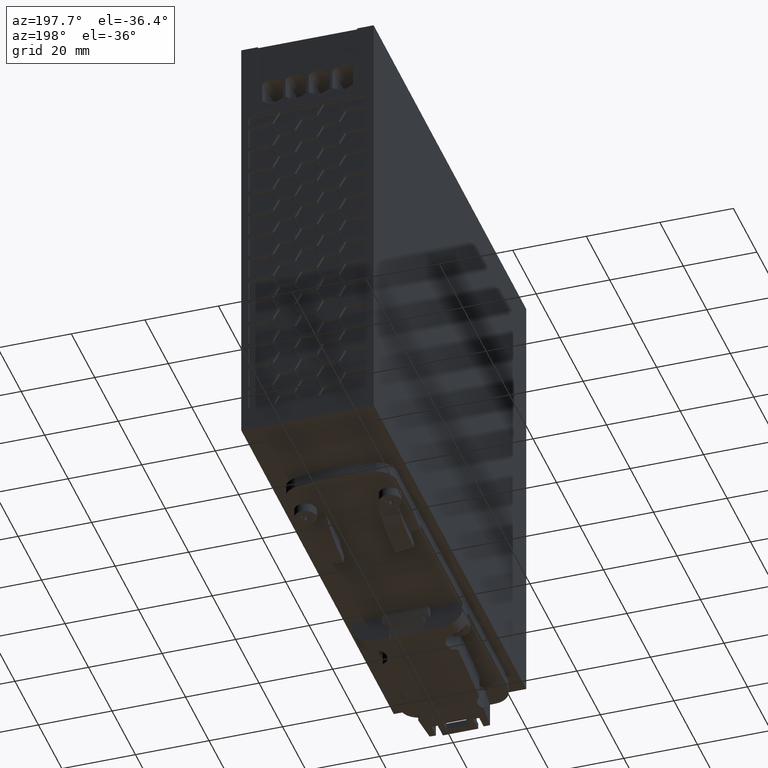
[diagram: clean part render]
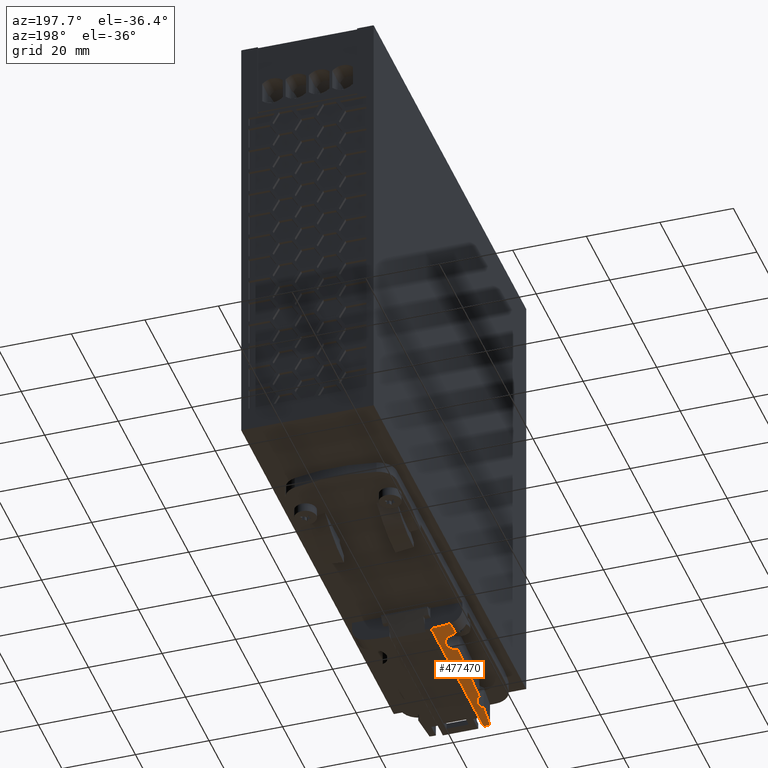
[diagram: same view with one face highlighted and labeled with its STEP entity id]
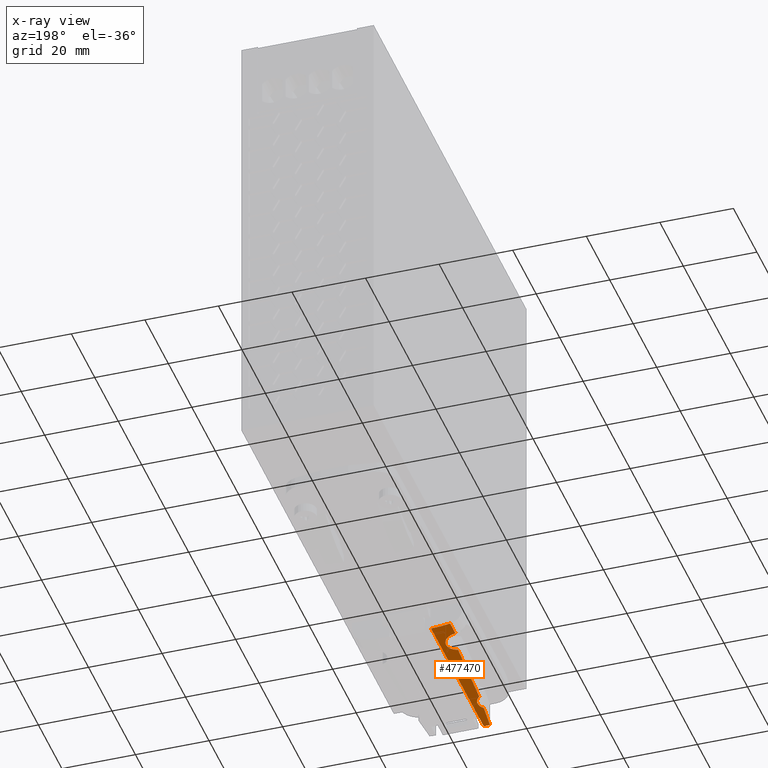
[diagram: x-ray of the same camera — body ghosted, the highlighted face saturated]
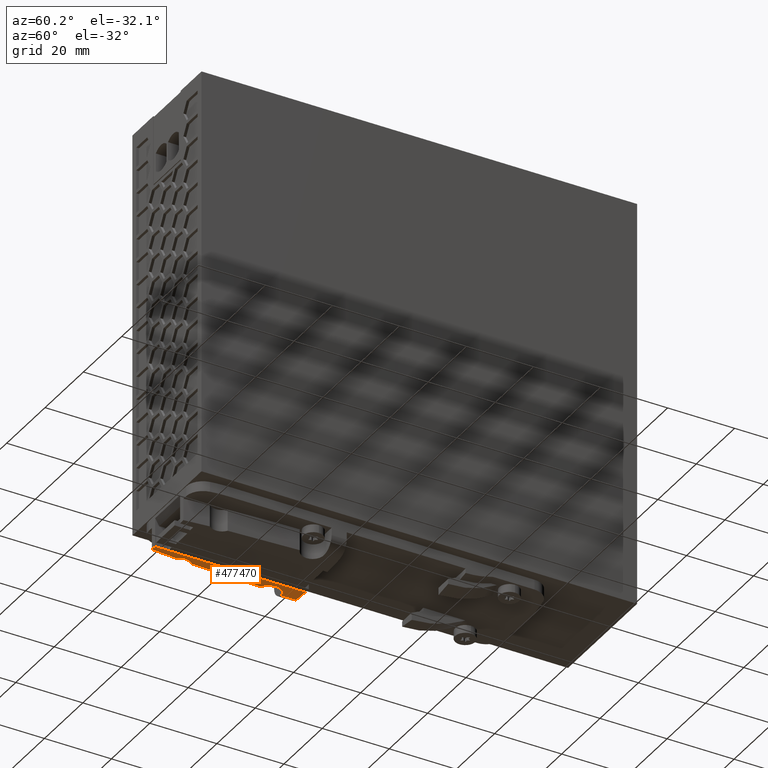
[diagram: same view with one face highlighted and labeled with its STEP entity id]
A machine part, auxiliary view. The second image highlights one B-rep face of the part: STEP entity #477470.
The next image is the same camera in x-ray: the body ghosted, the highlighted face saturated — about 0% of this face is hidden behind the body in this view.
A second angle (auxiliary view) of the same face is appended — the face is thin or edge-on in the first view.
In plain terms, the highlighted cylindrical surface (partial cylindrical patch) has radius 30 mm, axis along (-0, -1, 0).
Its self-contained STEP definition (entity closure, byte-faithful):
#460920=CARTESIAN_POINT('',(11.50188642607,0.198631815646309,
-2.55795384873636E-13));
#460930=VERTEX_POINT('',#460920);
#460960=CARTESIAN_POINT('',(11.5018864260698,0.19863181564628,
30.0000000000007));
#460970=DIRECTION('',(1.37468202273052E-5,-0.999999999905512,
3.26265223505973E-55));
#460980=DIRECTION('',(0.999999999905512,1.37468202273052E-5,
5.47171507113664E-60));
#460990=AXIS2_PLACEMENT_3D('',#460960,#460970,#460980);
#461000=CIRCLE('',#460990,30.000000000001);
#461010=CARTESIAN_POINT('',(9.78540266523366,0.198608219452638,
0.0491455297475056));
#461020=VERTEX_POINT('',#461010);
#461030=EDGE_CURVE('',#461020,#460930,#461000,.T.);
#467590=CARTESIAN_POINT('',(6.30896218936534,45.0485604336881,
0.452750706226169));
#467600=VERTEX_POINT('',#467590);
#467630=CARTESIAN_POINT('',(11.5012698811826,45.0486318114086,
30.0000000000007));
#467640=DIRECTION('',(1.37468202273052E-5,-0.999999999905512,
3.26265223505973E-55));
#467650=DIRECTION('',(0.999999999905512,1.37468202273052E-5,
5.47171507113664E-60));
#467660=AXIS2_PLACEMENT_3D('',#467630,#467640,#467650);
#467670=CIRCLE('',#467660,30.000000000001);
#467680=CARTESIAN_POINT('',(11.5012698811824,45.0486318114085,
-2.55795384873636E-13));
#467690=VERTEX_POINT('',#467680);
#467700=EDGE_CURVE('',#467600,#467690,#467670,.T.);
#475250=CARTESIAN_POINT('',(6.50133174234592,40.5485630777326,
0.419601084501664));
#475260=VERTEX_POINT('',#475250);
#475290=CARTESIAN_POINT('',(11.5013317418736,40.5486318118338,
30.0000000000007));
#475300=DIRECTION('',(1.37468202273052E-5,-0.999999999905512,
3.26265223505973E-55));
#475310=DIRECTION('',(0.999999999905512,1.37468202273052E-5,
5.47171507113664E-60));
#475320=AXIS2_PLACEMENT_3D('',#475290,#475300,#475310);
#475330=CIRCLE('',#475320,30.000000000001);
#475340=CARTESIAN_POINT('',(6.3090240500564,40.5485604341133,
0.452750706226169));
#475350=VERTEX_POINT('',#475340);
#475360=EDGE_CURVE('',#475350,#475260,#475330,.T.);
#475700=CARTESIAN_POINT('',(6.30896218936534,45.0485604336881,
0.452750706226169));
#475710=DIRECTION('',(1.37468202360145E-5,-0.999999999905512,
3.26265223505973E-55));
#475720=VECTOR('',#475710,1.);
#475730=LINE('',#475700,#475720);
#475740=EDGE_CURVE('',#467600,#475350,#475730,.T.);
#475860=CARTESIAN_POINT('',(11.5012630077725,45.5486318113608,
30.0000000000007));
#475870=DIRECTION('',(1.37468202273052E-5,-0.999999999905512,
3.26265223505973E-55));
#475880=DIRECTION('',(0.999999999905512,1.37468202273052E-5,
5.47171507113664E-60));
#475890=AXIS2_PLACEMENT_3D('',#475860,#475870,#475880);
#475900=CYLINDRICAL_SURFACE('',#475890,30.000000000001);
#475910=ORIENTED_EDGE('',*,*,#467700,.T.);
#475920=ORIENTED_EDGE('',*,*,#475740,.F.);
#475930=ORIENTED_EDGE('',*,*,#475360,.F.);
#475940=CARTESIAN_POINT('',(7.76712501425629,33.7854527221456,
0.233323904833895));
#475950=CARTESIAN_POINT('',(7.81365512203501,33.8035015323924,
0.227486562009886));
#475960=CARTESIAN_POINT('',(7.9059986791881,33.841612107526,
0.21612361925105));
#475970=CARTESIAN_POINT('',(8.04207294606285,33.9047164308342,
0.200016219299386));
#475980=CARTESIAN_POINT('',(8.17545621260913,33.9736662561345,
0.184838978612618));
#475990=CARTESIAN_POINT('',(8.30600592724183,34.0484170111877,
0.170569338042412));
#476000=CARTESIAN_POINT('',(8.43341805930805,34.1288347257879,
0.157200294562955));
#476010=CARTESIAN_POINT('',(8.55751035382655,34.214849198985,
0.144708400070527));
#476020=CARTESIAN_POINT('',(8.67790660443852,34.3062360944361,
0.1330867497322));
#476030=CARTESIAN_POINT('',(8.79464529843596,34.4030720116735,
0.122285581589523));
#476040=CARTESIAN_POINT('',(8.90738857107609,34.5051657678486,
0.112291024445909));
#476050=CARTESIAN_POINT('',(9.0159325649444,34.6124200944253,
0.103074196700902));
#476060=CARTESIAN_POINT('',(9.11978091958929,34.7243950655831,
0.0946278273490577));
#476070=CARTESIAN_POINT('',(9.21872627655905,34.8408906688894,
0.086918103031735));
#476080=CARTESIAN_POINT('',(9.31251777765281,34.961628838921,
0.0799141146597719));
#476090=CARTESIAN_POINT('',(9.4009409681596,35.0863362564376,
0.0735818896728517));
#476100=CARTESIAN_POINT('',(9.48382123430567,35.2147628708784,
0.0678851762763486));
#476110=CARTESIAN_POINT('',(9.56089740453573,35.3464752741877,
0.0627944715043327));
#476120=CARTESIAN_POINT('',(9.63207384168236,35.4812478599032,
0.0582705060317323));
#476130=CARTESIAN_POINT('',(9.69722003090819,35.6187656980434,
0.0542786627255225));
#476140=CARTESIAN_POINT('',(9.7563156980387,35.7589505101851,
0.050780706834729));
#476150=CARTESIAN_POINT('',(9.80923647432267,35.9014855756319,
0.0477475778128564));
#476160=CARTESIAN_POINT('',(9.85590651461463,36.046142606016,
0.0451506153480636));
#476170=CARTESIAN_POINT('',(9.89624050174848,36.1926351581167,
0.0429649583002174));
#476180=CARTESIAN_POINT('',(9.93018014460849,36.3407338749012,
0.0411680331727666));
#476190=CARTESIAN_POINT('',(9.95765042880972,36.4901023436154,
0.0397418268221941));
#476200=CARTESIAN_POINT('',(9.97861045501738,36.6404672547404,
0.0386706278696636));
#476210=CARTESIAN_POINT('',(9.99303160027145,36.7915652341812,
0.0379420806107191));
#476220=CARTESIAN_POINT('',(10.0008908294812,36.9431751059592,
0.0375479884067715));
#476230=CARTESIAN_POINT('',(10.0021697571035,37.095057586787,
0.0374838954030281));
#476240=CARTESIAN_POINT('',(9.99685702236895,37.246898811728,
0.0377497621702787));
#476250=CARTESIAN_POINT('',(9.98495834928052,37.3983843009868,
0.0383485797935919));
#476260=CARTESIAN_POINT('',(9.96650162712665,37.5491818523566,
0.039286987487742));
#476270=CARTESIAN_POINT('',(9.94149524595379,37.6991970687465,
0.0405765597863592));
#476280=CARTESIAN_POINT('',(9.90995493683689,37.8481628739394,
0.042232998875221));
#476290=CARTESIAN_POINT('',(9.87190634736575,37.9958238045706,
0.0442755758440114));
#476300=CARTESIAN_POINT('',(9.8274544663698,38.1417150435195,
0.0467233900641872));
#476310=CARTESIAN_POINT('',(9.77668362594325,38.2855512021765,
0.0496001525980603));
#476320=CARTESIAN_POINT('',(9.71970135746608,38.4270246486719,
0.0529318215118622));
#476330=CARTESIAN_POINT('',(9.65663767895979,38.565827982774,
0.0567459684808398));
#476340=CARTESIAN_POINT('',(9.58761670464539,38.7017043149575,
0.0610733825251373));
#476350=CARTESIAN_POINT('',(9.51287038000042,38.8342370043895,
0.0659401273265701));
#476360=CARTESIAN_POINT('',(9.43254780113359,38.9632243541551,
0.0713791277134703));
#476370=CARTESIAN_POINT('',(9.34685317490093,39.0884034303863,
0.0774207188363505));
#476380=CARTESIAN_POINT('',(9.25585847343323,39.209697655841,
0.0841062406250614));
#476390=CARTESIAN_POINT('',(9.15976270577309,39.3268628578644,
0.0914688629044633));
#476400=CARTESIAN_POINT('',(9.05872968431369,39.4397142957154,
0.0995450300447374));
#476410=CARTESIAN_POINT('',(8.95295127022758,39.5480500765776,
0.108368925986838));
#476420=CARTESIAN_POINT('',(8.84261529591394,39.6516861311552,
0.117975061338313));
#476430=CARTESIAN_POINT('',(8.72789704292817,39.7504623563447,
0.128398303095423));
#476440=CARTESIAN_POINT('',(8.60902224330685,39.8441812854332,
0.139668358110526));
#476450=CARTESIAN_POINT('',(8.48620691453401,39.9326740093611,
0.15181402834898));
#476460=CARTESIAN_POINT('',(8.35973059548991,40.0157438819231,
0.16485569029598));
#476470=CARTESIAN_POINT('',(8.22980543439298,40.0932581668667,
0.178817726292095));
#476480=CARTESIAN_POINT('',(8.09669691252598,40.1650655275497,
0.193716363929894));
#476490=CARTESIAN_POINT('',(7.96064484357731,40.2310400028612,
0.20956717300038));
#476500=CARTESIAN_POINT('',(7.82194945650351,40.2910469481724,
0.22637499546849));
#476510=CARTESIAN_POINT('',(7.68083389873826,40.3449994744748,
0.244149688457867));
#476520=CARTESIAN_POINT('',(7.53758573182975,40.3927930535467,
0.262889203161166));
#476530=CARTESIAN_POINT('',(7.39248749062732,40.434343717011,
0.282587304413539));
#476540=CARTESIAN_POINT('',(7.2458649381709,40.4695737234643,
0.303226240950124));
#476550=CARTESIAN_POINT('',(7.09811340546905,40.4984107813537,
0.324772163539649));
#476560=CARTESIAN_POINT('',(6.94950532474826,40.5208380192636,
0.347201892041653));
#476570=CARTESIAN_POINT('',(6.80037083839225,40.536842279071,
0.370477756049866));
#476580=CARTESIAN_POINT('',(6.65088277967095,40.5464361631332,
0.394581576900549));
#476590=CARTESIAN_POINT('',(6.5511603845297,40.5485637482974,
0.411178508531322));
#476600=CARTESIAN_POINT('',(6.50133174543219,40.5485630777326,
0.419601083992319));
#476610=B_SPLINE_CURVE_WITH_KNOTS('',3,(#475940,#475950,#475960,#475970,
#475980,#475990,#476000,#476010,#476020,#476030,#476040,#476050,#476060,
#476070,#476080,#476090,#476100,#476110,#476120,#476130,#476140,#476150,
#476160,#476170,#476180,#476190,#476200,#476210,#476220,#476230,#476240,
#476250,#476260,#476270,#476280,#476290,#476300,#476310,#476320,#476330,
#476340,#476350,#476360,#476370,#476380,#476390,#476400,#476410,#476420,
#476430,#476440,#476450,#476460,#476470,#476480,#476490,#476500,#476510,
#476520,#476530,#476540,#476550,#476560,#476570,#476580,#476590,#476600)
,.UNSPECIFIED.,.F.,.F.,(4,1,1,1,1,1,1,1,1,1,1,1,1,1,1,1,1,1,1,1,1,1,1,1,
1,1,1,1,1,1,1,1,1,1,1,1,1,1,1,1,1,1,1,1,1,1,1,1,1,1,1,1,1,1,1,1,1,1,1,1,
1,1,1,1,4),(0.,0.015497234714534,0.030997482854534,0.046512646564483,
0.062027025174535,0.077587735258608,0.093148659838299,0.108738250532703,
0.124327814634299,0.140030806503102,0.155733837052167,0.171460940229126,
0.187188043074656,0.202917919258228,0.218647797133755,0.234361896695791,
0.250075983860575,0.265724976806565,0.281373953798102,0.297008005957802,
0.312642052551927,0.328260360257966,0.343878673405825,0.359493637325086,
0.375108592719084,0.390705823959836,0.406303054832601,0.421906860587602,
0.43751258417979,0.453132609462847,0.468750718052515,0.484362266023354,
0.499973823312105,0.515642763152559,0.531311716191835,0.546991337693265,
0.562670958246002,0.578348579618349,0.594026200661655,0.609690778754816,
0.625355343502895,0.640962732296161,0.656570108489376,0.67216447600765,
0.687758841434057,0.703345150446578,0.718931454238994,0.734520972569816,
0.750110492462354,0.765716032754458,0.781321575794829,0.796932046077332,
0.812542518743525,0.828165345923736,0.843788181580252,0.859416838113222,
0.875045474251856,0.890689298799013,0.9063331847598,0.921974580220726,
0.937615752597381,0.953220183377813,0.96882539811356,0.984414179982208,
1.),.UNSPECIFIED.);
#476620=CARTESIAN_POINT('',(7.76712501425503,33.7854527221453,
0.233323904833895));
#476630=VERTEX_POINT('',#476620);
#476640=EDGE_CURVE('',#476630,#475260,#476610,.T.);
#476650=ORIENTED_EDGE('',*,*,#476640,.T.);
#476660=CARTESIAN_POINT('',(8.69858633776477,12.7732492265029,
0.131245795159259));
#476670=CARTESIAN_POINT('',(8.63685120078535,13.6475189775023,
0.137038395444591));
#476680=CARTESIAN_POINT('',(8.51910593799338,15.3964711306891,
0.148471522737424));
#476690=CARTESIAN_POINT('',(8.3596706486975,18.0210155923178,
0.164858499027758));
#476700=CARTESIAN_POINT('',(8.21742440453467,20.6465983248137,
0.180205170569735));
#476710=CARTESIAN_POINT('',(8.0923749631651,23.2730699056838,
0.194263059922349));
#476720=CARTESIAN_POINT('',(7.98452912052033,25.9003107598057,
0.206812945964458));
#476730=CARTESIAN_POINT('',(7.89389084605043,28.5282023401579,
0.217665718699578));
#476740=CARTESIAN_POINT('',(7.82046604227238,31.1565933058584,
0.226661551688494));
#476750=CARTESIAN_POINT('',(7.78299225697135,32.9091335689391,
0.23133483309843));
#476760=CARTESIAN_POINT('',(7.76712501425541,33.7854527221437,
0.233323904833838));
#476770=B_SPLINE_CURVE_WITH_KNOTS('',3,(#476660,#476670,#476680,#476690,
#476700,#476710,#476720,#476730,#476740,#476750,#476760),.UNSPECIFIED.,
.F.,.F.,(4,1,1,1,1,1,1,1,4),(0.,0.124999132960453,0.24999869820818,
0.374999297326298,0.500000084244278,0.625000847487541,0.750001410304937,
0.875000923779442,1.),.UNSPECIFIED.);
#476780=CARTESIAN_POINT('',(8.69858633776447,12.7732492265028,
0.131245795157355));
#476790=VERTEX_POINT('',#476780);
#476800=EDGE_CURVE('',#476790,#476630,#476770,.T.);
#476810=ORIENTED_EDGE('',*,*,#476800,.T.);
#476820=CARTESIAN_POINT('',(8.69858636664765,12.7732492027219,
0.131245795159288));
#476830=CARTESIAN_POINT('',(8.7446257580465,12.7361289783634,
0.126925131489742));
#476840=CARTESIAN_POINT('',(8.83487790523439,12.659507983924,
0.118670168079404));
#476850=CARTESIAN_POINT('',(8.9643494030622,12.5377684672616,
0.107406789556507));
#476860=CARTESIAN_POINT('',(9.08761121849939,12.4094728916857,
0.0972088004599527));
#476870=CARTESIAN_POINT('',(9.20440018907634,12.2748356259424,
0.0880186216361949));
#476880=CARTESIAN_POINT('',(9.31435588929299,12.1342039725718,
0.0797857065709309));
#476890=CARTESIAN_POINT('',(9.41713013032994,11.9879496337841,
0.0724583460491601));
#476900=CARTESIAN_POINT('',(9.51233288709346,11.8365928247105,
0.0659875638509675));
#476910=CARTESIAN_POINT('',(9.59965908265936,11.6806202114422,
0.060319798145315));
#476920=CARTESIAN_POINT('',(9.67887732407066,11.5204662313563,
0.0553996986067204));
#476930=CARTESIAN_POINT('',(9.74979191695195,11.356559088839,
0.0511738967544204));
#476940=CARTESIAN_POINT('',(9.81224889224511,11.1892771415912,
0.0475916926837101));
#476950=CARTESIAN_POINT('',(9.86608030680415,11.0190807337284,
0.0446091906910908));
#476960=CARTESIAN_POINT('',(9.91115778057911,10.846406996871,
0.0421863881161073));
#476970=CARTESIAN_POINT('',(9.94737233411559,10.6717023738989,
0.0402892825512424));
#476980=CARTESIAN_POINT('',(9.97463952511827,10.4953847619571,
0.0388899404120764));
#476990=CARTESIAN_POINT('',(9.99289120899476,10.3179116387615,
0.0379671413489859));
#477000=CARTESIAN_POINT('',(10.0020791000211,10.1397320975767,
0.0375070081471449));
#477010=CARTESIAN_POINT('',(10.0021790532066,9.96130479249163,
0.037502035630439));
#477020=CARTESIAN_POINT('',(9.99318904001509,9.78309843768112,
0.0379526504803778));
#477030=CARTESIAN_POINT('',(9.97512790397997,9.60554034120966,
0.0388656741676812));
#477040=CARTESIAN_POINT('',(9.94803620602985,9.42909077311626,
0.0402557898317184));
#477050=CARTESIAN_POINT('',(9.91196907388711,9.2541830291741,
0.0421445763781776));
#477060=CARTESIAN_POINT('',(9.86702203591314,9.0813060675174,
0.0445593017958856));
#477070=CARTESIAN_POINT('',(9.81328763056153,8.91085668104802,
0.0475349442909589));
#477080=CARTESIAN_POINT('',(9.75089175965177,8.74328714243819,
0.0511116846064397));
#477090=CARTESIAN_POINT('',(9.67999412303872,8.57906138555681,
0.0553341908277218));
#477100=CARTESIAN_POINT('',(9.60081892024094,8.41870631040555,
0.0602490384371777));
#477110=CARTESIAN_POINT('',(9.51366889676368,8.26279552649537,
0.065902338912224));
#477120=CARTESIAN_POINT('',(9.41882788180829,8.1117496346743,
0.0723443304637783));
#477130=CARTESIAN_POINT('',(9.31659525250519,7.96596746438931,
0.0796269939218064));
#477140=CARTESIAN_POINT('',(9.20719434521969,7.82570180967871,
0.0878095098487677));
#477150=CARTESIAN_POINT('',(9.12965274612924,7.73606695024598,
0.0939036601499197));
#477160=CARTESIAN_POINT('',(9.08979119563572,7.6922846481776,
0.0971189757962918));
#477170=B_SPLINE_CURVE_WITH_KNOTS('',3,(#476820,#476830,#476840,#476850,
#476860,#476870,#476880,#476890,#476900,#476910,#476920,#476930,#476940,
#476950,#476960,#476970,#476980,#476990,#477000,#477010,#477020,#477030,
#477040,#477050,#477060,#477070,#477080,#477090,#477100,#477110,#477120,
#477130,#477140,#477150,#477160),.UNSPECIFIED.,.F.,.F.,(4,1,1,1,1,1,1,1,
1,1,1,1,1,1,1,1,1,1,1,1,1,1,1,1,1,1,1,1,1,1,1,1,4),(0.,0.031153171719575
,0.062317677483811,0.093515972403395,0.124735773545347,0.156039448331487
,0.187360820096678,0.218685288336468,0.250000351508317,0.281279379144137
,0.312550490698141,0.34381160655728,0.375068135159755,0.406304819069382,
0.437537384888199,0.468768506172583,0.500000153102547,0.5312287865328,
0.562462695441384,0.593699837314905,0.624931711309425,0.656188285563606,
0.687449501910483,0.718720751694022,0.749999911066306,0.781315046606039,
0.81263957616962,0.843960994187355,0.875264694861664,0.906484418635662,
0.937682608244756,0.968846975862025,1.),.UNSPECIFIED.);
#477180=CARTESIAN_POINT('',(9.08979119518454,7.69228464768149,
0.0971189758174376));
#477190=VERTEX_POINT('',#477180);
#477200=EDGE_CURVE('',#476790,#477190,#477170,.T.);
#477210=ORIENTED_EDGE('',*,*,#477200,.F.);
#477220=CARTESIAN_POINT('',(9.7854026618961,0.198608252083119,
0.0491455297472498));
#477230=CARTESIAN_POINT('',(9.65776528773599,1.44643072651837,
0.0564594458286081));
#477240=CARTESIAN_POINT('',(9.41418557755344,3.94328013624666,
0.0720504163785733));
#477250=CARTESIAN_POINT('',(9.19401687734016,6.44229574735186,
0.0887134282814372));
#477260=CARTESIAN_POINT('',(9.08979119516865,7.69228464767758,
0.0971189758203366));
#477270=B_SPLINE_CURVE_WITH_KNOTS('',3,(#477220,#477230,#477240,#477250,
#477260),.UNSPECIFIED.,.F.,.F.,(4,1,4),(0.,0.499999992983597,1.),
.UNSPECIFIED.);
#477280=EDGE_CURVE('',#461020,#477190,#477270,.T.);
#477290=ORIENTED_EDGE('',*,*,#477280,.T.);
#477300=ORIENTED_EDGE('',*,*,#461030,.F.);
#477310=CARTESIAN_POINT('',(11.5012630077723,45.5486318113608,
-3.41060513164848E-13));
#477320=DIRECTION('',(1.37468202273052E-5,-0.999999999905512,
3.26265223505973E-55));
#477330=VECTOR('',#477320,1.);
#477340=LINE('',#477310,#477330);
#477350=CARTESIAN_POINT('',(11.5018328134711,4.09863181527798,
-2.55795384873636E-13));
#477360=VERTEX_POINT('',#477350);
#477370=EDGE_CURVE('',#477360,#460930,#477340,.T.);
#477380=ORIENTED_EDGE('',*,*,#477370,.T.);
#477390=CARTESIAN_POINT('',(11.5012698811824,45.0486318114085,
-2.55795384873636E-13));
#477400=DIRECTION('',(1.37468202359191E-5,-0.999999999905513,
3.26265223505973E-55));
#477410=VECTOR('',#477400,1.);
#477420=LINE('',#477390,#477410);
#477430=EDGE_CURVE('',#467690,#477360,#477420,.T.);
#477440=ORIENTED_EDGE('',*,*,#477430,.T.);
#477450=EDGE_LOOP('',(#477440,#477380,#477300,#477290,#477210,#476810,
#476650,#475930,#475920,#475910));
#477460=FACE_OUTER_BOUND('',#477450,.T.);
#477470=ADVANCED_FACE('',(#477460),#475900,.T.);